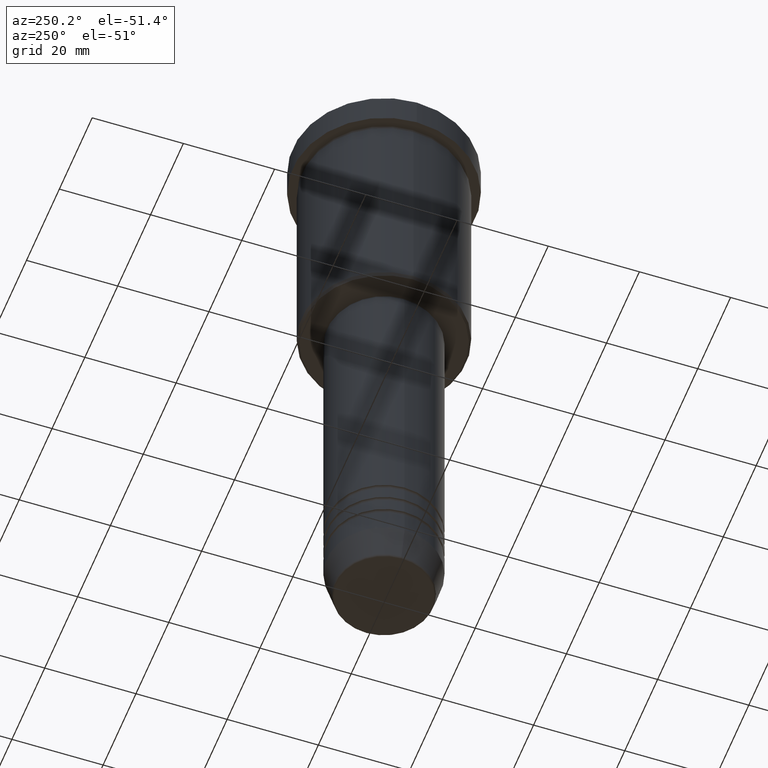
[diagram: clean part render]
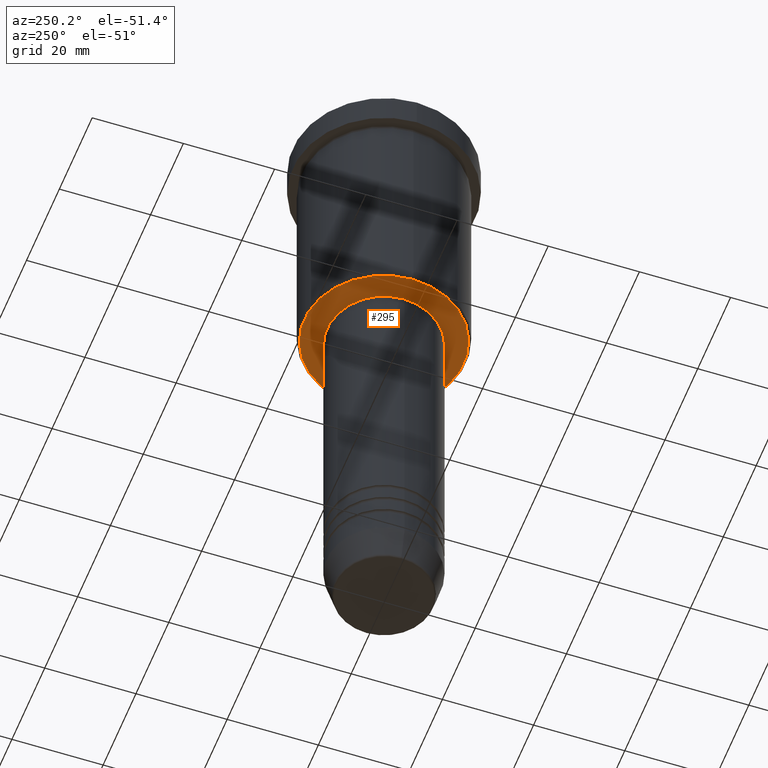
[diagram: same view with one face highlighted and labeled with its STEP entity id]
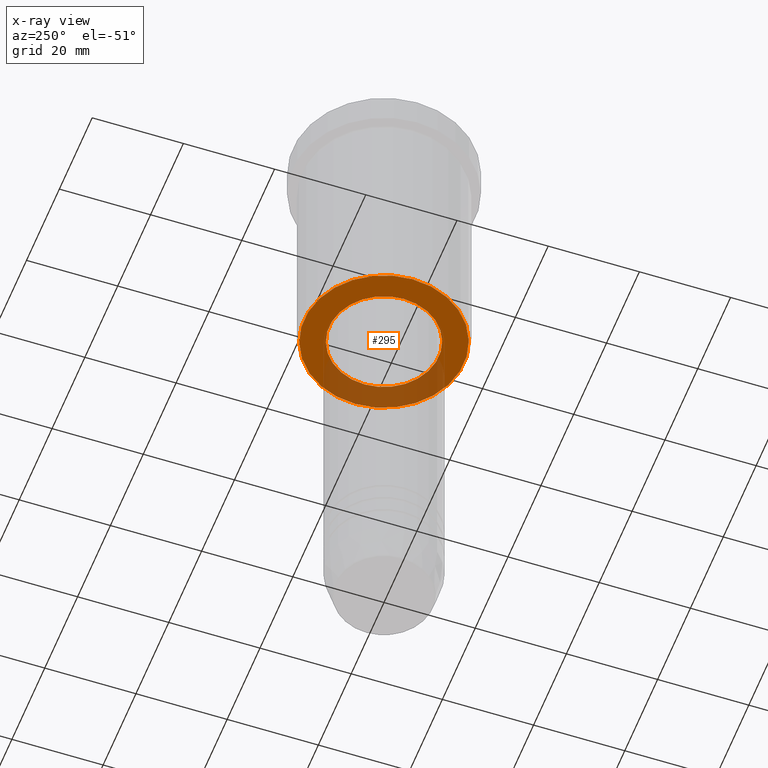
[diagram: x-ray of the same camera — body ghosted, the highlighted face saturated]
A machine part, auxiliary view. The second image highlights one B-rep face of the part: STEP entity #295.
The next image is the same camera in x-ray: the body ghosted, the highlighted face saturated — about 31% of this face is hidden behind the body in this view.
In plain terms, the highlighted planar face has unit normal (0, 0, -1).
Its self-contained STEP definition (entity closure, byte-faithful):
#38 = EDGE_CURVE ( 'NONE', #93, #243, #136, .T. ) ;
#39 = VERTEX_POINT ( 'NONE', #62 ) ;
#62 = CARTESIAN_POINT ( 'NONE',  ( 12.00000000000000000, 0.000000000000000000, -56.00000000000000711 ) ) ;
#71 = CARTESIAN_POINT ( 'NONE',  ( 0.000000000000000000, 0.000000000000000000, -56.00000000000000711 ) ) ;
#73 = DIRECTION ( 'NONE',  ( -1.000000000000000000, 0.000000000000000000, 0.000000000000000000 ) ) ;
#93 = VERTEX_POINT ( 'NONE', #449 ) ;
#111 = CARTESIAN_POINT ( 'NONE',  ( 0.000000000000000000, 18.00000000000000000, -56.00000000000000711 ) ) ;
#128 = EDGE_CURVE ( 'NONE', #39, #748, #967, .T. ) ;
#136 = CIRCLE ( 'NONE', #563, 17.50000000000000000 ) ;
#162 = DIRECTION ( 'NONE',  ( -0.000000000000000000, -0.000000000000000000, 1.000000000000000000 ) ) ;
#182 = EDGE_CURVE ( 'NONE', #748, #39, #983, .T. ) ;
#243 = VERTEX_POINT ( 'NONE', #1176 ) ;
#269 = ORIENTED_EDGE ( 'NONE', *, *, #587, .T. ) ;
#295 = ADVANCED_FACE ( 'NONE', ( #905, #1086 ), #998, .T. ) ;
#353 = AXIS2_PLACEMENT_3D ( 'NONE', #828, #551, #1016 ) ;
#394 = ORIENTED_EDGE ( 'NONE', *, *, #182, .T. ) ;
#398 = EDGE_LOOP ( 'NONE', ( #986, #394 ) ) ;
#449 = CARTESIAN_POINT ( 'NONE',  ( -17.50000000000000000, 2.173748068486551641E-15, -56.00000000000000711 ) ) ;
#452 = AXIS2_PLACEMENT_3D ( 'NONE', #71, #162, #537 ) ;
#530 = AXIS2_PLACEMENT_3D ( 'NONE', #809, #544, #73 ) ;
#537 = DIRECTION ( 'NONE',  ( 1.000000000000000000, 0.000000000000000000, 0.000000000000000000 ) ) ;
#544 = DIRECTION ( 'NONE',  ( 0.000000000000000000, 0.000000000000000000, -1.000000000000000000 ) ) ;
#551 = DIRECTION ( 'NONE',  ( -0.000000000000000000, -0.000000000000000000, 1.000000000000000000 ) ) ;
#563 = AXIS2_PLACEMENT_3D ( 'NONE', #898, #966, #1067 ) ;
#587 = EDGE_CURVE ( 'NONE', #243, #93, #778, .T. ) ;
#748 = VERTEX_POINT ( 'NONE', #753 ) ;
#752 = EDGE_LOOP ( 'NONE', ( #269, #1094 ) ) ;
#753 = CARTESIAN_POINT ( 'NONE',  ( -12.00000000000000000, 1.469576158976823947E-15, -56.00000000000000711 ) ) ;
#777 = AXIS2_PLACEMENT_3D ( 'NONE', #111, #935, #844 ) ;
#778 = CIRCLE ( 'NONE', #530, 17.50000000000000000 ) ;
#809 = CARTESIAN_POINT ( 'NONE',  ( 0.000000000000000000, 0.000000000000000000, -56.00000000000000711 ) ) ;
#828 = CARTESIAN_POINT ( 'NONE',  ( 0.000000000000000000, 0.000000000000000000, -56.00000000000000711 ) ) ;
#844 = DIRECTION ( 'NONE',  ( -1.000000000000000000, 0.000000000000000000, -0.000000000000000000 ) ) ;
#898 = CARTESIAN_POINT ( 'NONE',  ( 0.000000000000000000, 0.000000000000000000, -56.00000000000000711 ) ) ;
#905 = FACE_OUTER_BOUND ( 'NONE', #752, .T. ) ;
#935 = DIRECTION ( 'NONE',  ( 0.000000000000000000, 0.000000000000000000, -1.000000000000000000 ) ) ;
#966 = DIRECTION ( 'NONE',  ( 0.000000000000000000, 0.000000000000000000, -1.000000000000000000 ) ) ;
#967 = CIRCLE ( 'NONE', #452, 12.00000000000000000 ) ;
#983 = CIRCLE ( 'NONE', #353, 12.00000000000000000 ) ;
#986 = ORIENTED_EDGE ( 'NONE', *, *, #128, .T. ) ;
#998 = PLANE ( 'NONE',  #777 ) ;
#1016 = DIRECTION ( 'NONE',  ( 1.000000000000000000, 0.000000000000000000, 0.000000000000000000 ) ) ;
#1067 = DIRECTION ( 'NONE',  ( -1.000000000000000000, 0.000000000000000000, 0.000000000000000000 ) ) ;
#1086 = FACE_BOUND ( 'NONE', #398, .T. ) ;
#1094 = ORIENTED_EDGE ( 'NONE', *, *, #38, .T. ) ;
#1176 = CARTESIAN_POINT ( 'NONE',  ( 17.50000000000000000, 0.000000000000000000, -56.00000000000000711 ) ) ;